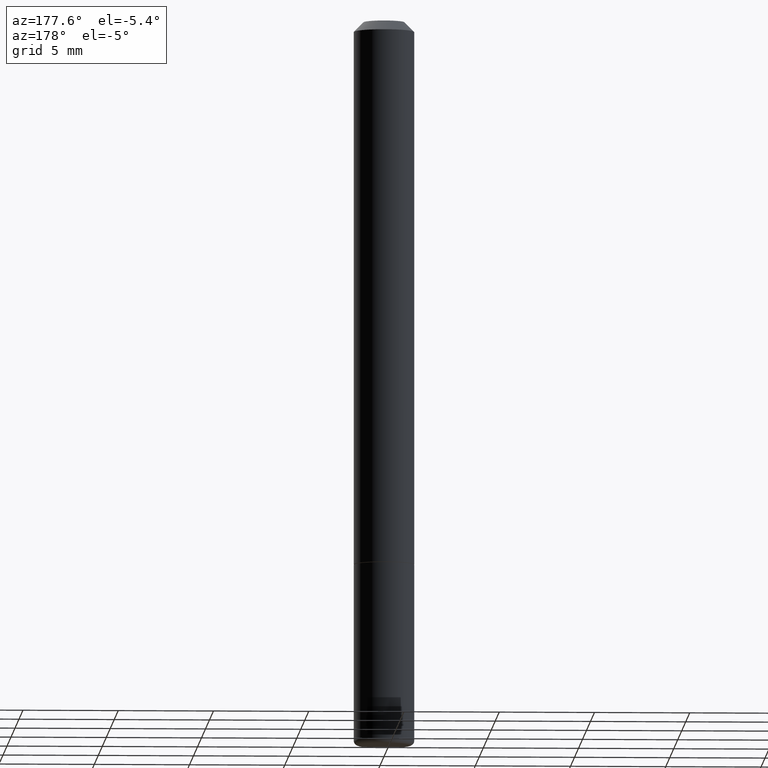
[diagram: clean part render]
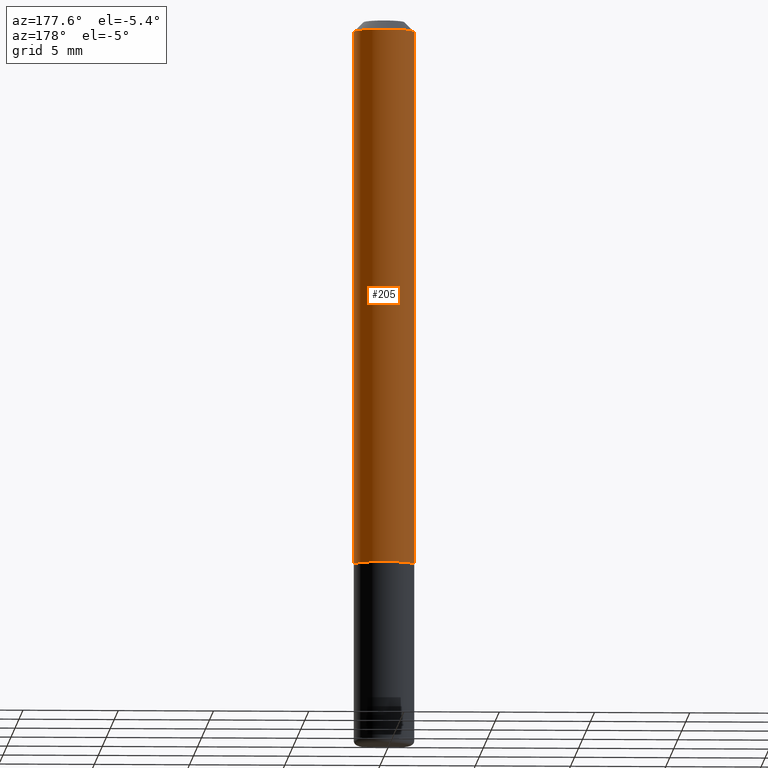
[diagram: same view with one face highlighted and labeled with its STEP entity id]
A machine part, auxiliary view. The second image highlights one B-rep face of the part: STEP entity #205.
In plain terms, the highlighted cylindrical surface (edge-blend (fillet) strip) has radius 1.5875 mm, axis along (-0, 0, 1).
Its self-contained STEP definition (entity closure, byte-faithful):
#2 = AXIS2_PLACEMENT_3D ( 'NONE', #221, #358, #158 ) ;
#3 = AXIS2_PLACEMENT_3D ( 'NONE', #182, #318, #145 ) ;
#7 = CARTESIAN_POINT ( 'NONE',  ( 0.06250000000000001388, -4.986107516375840208E-16, -0.02000000000000006981 ) ) ;
#14 = ORIENTED_EDGE ( 'NONE', *, *, #255, .F. ) ;
#35 = FACE_OUTER_BOUND ( 'NONE', #42, .T. ) ;
#42 = EDGE_LOOP ( 'NONE', ( #302, #107, #136, #14 ) ) ;
#52 = VERTEX_POINT ( 'NONE', #277 ) ;
#54 = AXIS2_PLACEMENT_3D ( 'NONE', #293, #129, #95 ) ;
#95 = DIRECTION ( 'NONE',  ( 1.000000000000000000, -6.982962677686269077E-15, 0.000000000000000000 ) ) ;
#100 = CYLINDRICAL_SURFACE ( 'NONE', #2, 0.06250000000000008327 ) ;
#107 = ORIENTED_EDGE ( 'NONE', *, *, #355, .T. ) ;
#120 = LINE ( 'NONE', #161, #157 ) ;
#129 = DIRECTION ( 'NONE',  ( -2.445468806185136597E-29, 3.491481338843145583E-15, 1.000000000000000000 ) ) ;
#136 = ORIENTED_EDGE ( 'NONE', *, *, #334, .F. ) ;
#145 = DIRECTION ( 'NONE',  ( 1.000000000000000000, -6.982962677686267499E-15, 0.000000000000000000 ) ) ;
#157 = VECTOR ( 'NONE', #330, 39.37007874015748143 ) ;
#158 = DIRECTION ( 'NONE',  ( 1.000000000000000000, -6.982962677686266711E-15, 4.876176775795935793E-29 ) ) ;
#161 = CARTESIAN_POINT ( 'NONE',  ( -0.06250000000000008327, 4.440892098500632078E-16, -3.074334431409319967E-30 ) ) ;
#182 = CARTESIAN_POINT ( 'NONE',  ( 4.890937612370289799E-31, -6.982962677686315028E-17, -0.02000000000000006981 ) ) ;
#192 = CIRCLE ( 'NONE', #54, 0.06250000000000015266 ) ;
#197 = VERTEX_POINT ( 'NONE', #394 ) ;
#201 = VECTOR ( 'NONE', #367, 39.37007874015748143 ) ;
#204 = VERTEX_POINT ( 'NONE', #7 ) ;
#205 = ADVANCED_FACE ( 'NONE', ( #35 ), #100, .T. ) ;
#221 = CARTESIAN_POINT ( 'NONE',  ( 0.000000000000000000, 0.000000000000000000, 0.000000000000000000 ) ) ;
#222 = EDGE_CURVE ( 'NONE', #52, #197, #192, .T. ) ;
#232 = CARTESIAN_POINT ( 'NONE',  ( 0.06250000000000008327, -4.364351673553922611E-16, 3.047610484872464074E-30 ) ) ;
#255 = EDGE_CURVE ( 'NONE', #52, #204, #301, .T. ) ;
#277 = CARTESIAN_POINT ( 'NONE',  ( 0.06250000000000015266, -4.360860192215089464E-15, -1.124000000000000332 ) ) ;
#293 = CARTESIAN_POINT ( 'NONE',  ( 2.748706938152094189E-29, -3.924425024859696217E-15, -1.124000000000000332 ) ) ;
#301 = LINE ( 'NONE', #232, #201 ) ;
#302 = ORIENTED_EDGE ( 'NONE', *, *, #222, .T. ) ;
#318 = DIRECTION ( 'NONE',  ( -2.445468806185136597E-29, 3.491481338843145583E-15, 1.000000000000000000 ) ) ;
#330 = DIRECTION ( 'NONE',  ( -2.445468806185136877E-29, 3.491481338843145188E-15, 1.000000000000000000 ) ) ;
#334 = EDGE_CURVE ( 'NONE', #204, #343, #337, .T. ) ;
#337 = CIRCLE ( 'NONE', #3, 0.06250000000000001388 ) ;
#343 = VERTEX_POINT ( 'NONE', #398 ) ;
#355 = EDGE_CURVE ( 'NONE', #197, #343, #120, .T. ) ;
#358 = DIRECTION ( 'NONE',  ( -2.445468806185136597E-29, 3.491481338843145583E-15, 1.000000000000000000 ) ) ;
#367 = DIRECTION ( 'NONE',  ( -2.445468806185136877E-29, 3.491481338843145188E-15, 1.000000000000000000 ) ) ;
#394 = CARTESIAN_POINT ( 'NONE',  ( -0.06250000000000015266, -1.553038115968214380E-15, -1.124000000000000332 ) ) ;
#398 = CARTESIAN_POINT ( 'NONE',  ( -0.06250000000000001388, 3.666055405785286670E-16, -0.02000000000000006981 ) ) ;